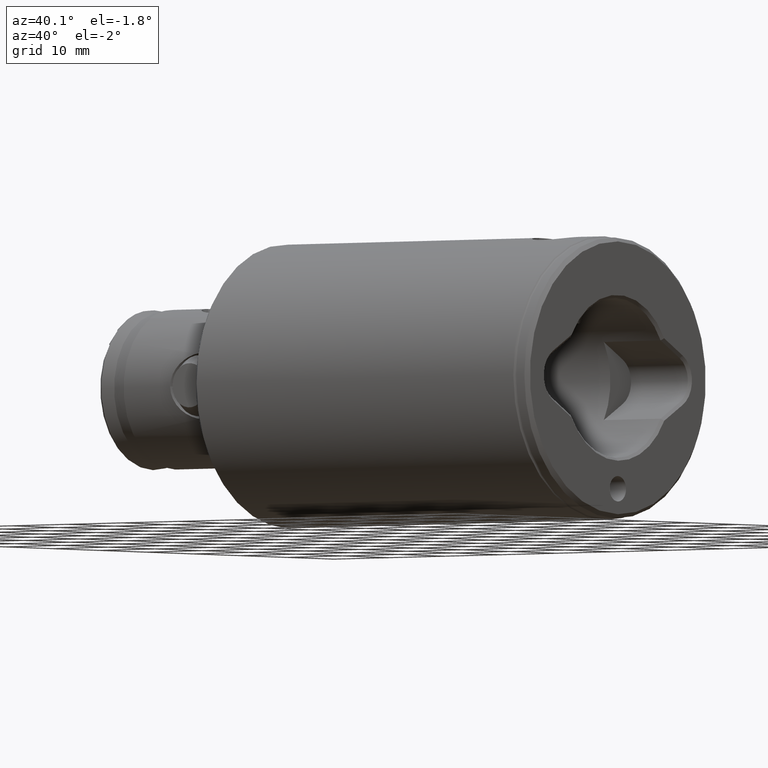
[diagram: clean part render]
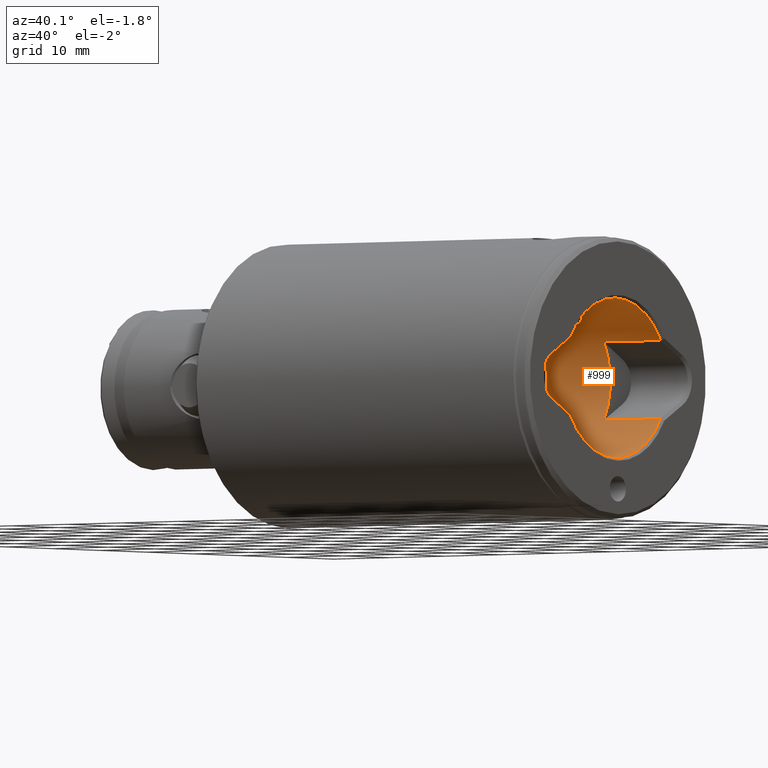
[diagram: same view with one face highlighted and labeled with its STEP entity id]
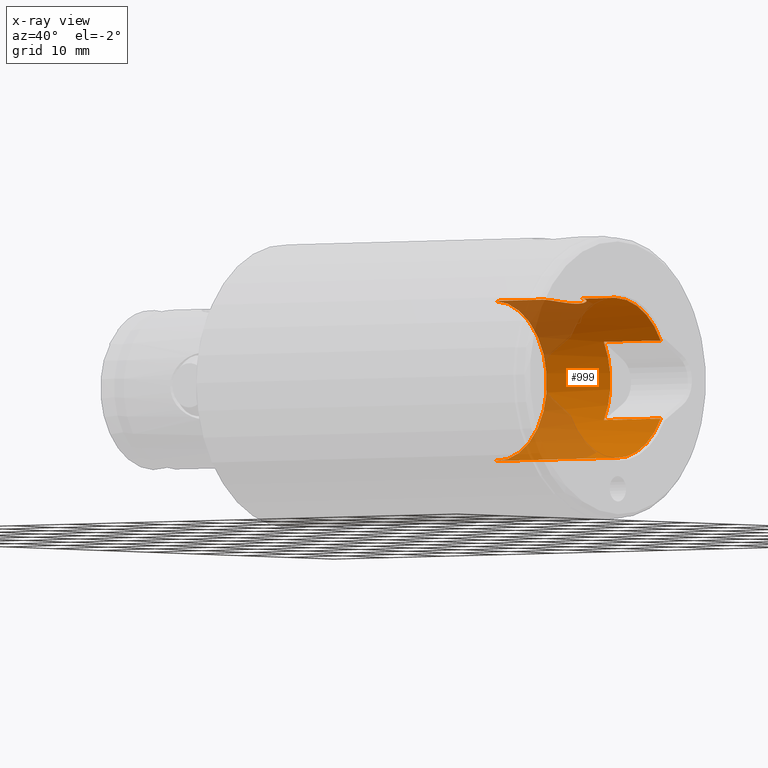
[diagram: x-ray of the same camera — body ghosted, the highlighted face saturated]
A machine part, auxiliary view. The second image highlights one B-rep face of the part: STEP entity #999.
The next image is the same camera in x-ray: the body ghosted, the highlighted face saturated — about 34% of this face is hidden behind the body in this view.
In plain terms, the highlighted cylindrical surface (partial cylindrical patch) has radius 11 mm, axis along (1, 0, -0).
Its self-contained STEP definition (entity closure, byte-faithful):
#49 = ORIENTED_EDGE ( 'NONE', *, *, #3020, .T. ) ;
#53 = EDGE_CURVE ( 'NONE', #2091, #2604, #1787, .T. ) ;
#63 = VECTOR ( 'NONE', #3459, 1000.000000000000000 ) ;
#73 = CARTESIAN_POINT ( 'NONE',  ( 11.00000000000000000, -2.854094968557275700E-016, 6.650000000000004800 ) ) ;
#86 = CARTESIAN_POINT ( 'NONE',  ( 11.00000000000000000, 1.347064945306348700E-015, 13.44999999999999600 ) ) ;
#107 = CARTESIAN_POINT ( 'NONE',  ( 0.0000000000000000000, 0.0000000000000000000, 10.60000000000000100 ) ) ;
#108 = LINE ( 'NONE', #4571, #63 ) ;
#230 = CARTESIAN_POINT ( 'NONE',  ( 10.86828324631419700, 1.707459504374200500, 7.101479267852412600 ) ) ;
#239 = CARTESIAN_POINT ( 'NONE',  ( 10.49653081582790500, 3.290129035966586000, 10.93586877485032500 ) ) ;
#255 = CARTESIAN_POINT ( 'NONE',  ( 11.00000000000000200, 0.2228098618246028000, 13.44999999999999600 ) ) ;
#282 = DIRECTION ( 'NONE',  ( -1.000000000000000000, 0.0000000000000000000, 0.0000000000000000000 ) ) ;
#332 = AXIS2_PLACEMENT_3D ( 'NONE', #533, #3058, #907 ) ;
#457 = EDGE_CURVE ( 'NONE', #1734, #1430, #108, .T. ) ;
#468 = DIRECTION ( 'NONE',  ( 0.0000000000000000000, 0.0000000000000000000, -1.000000000000000000 ) ) ;
#485 = DIRECTION ( 'NONE',  ( -1.000000000000000000, 3.552713678800500900E-015, 0.0000000000000000000 ) ) ;
#533 = CARTESIAN_POINT ( 'NONE',  ( 0.0000000000000000000, 0.0000000000000000000, 22.00000000000000400 ) ) ;
#540 = CARTESIAN_POINT ( 'NONE',  ( 11.00000000000000000, 1.347111479062088200E-015, 29.00000000000000000 ) ) ;
#570 = VECTOR ( 'NONE', #468, 1000.000000000000000 ) ;
#598 = CARTESIAN_POINT ( 'NONE',  ( 10.76873902392065200, 2.249384207509522900, 7.490935159604253700 ) ) ;
#606 = CARTESIAN_POINT ( 'NONE',  ( -5.377444024197280300, 9.595993735232683600, 29.00000000000000000 ) ) ;
#612 = CARTESIAN_POINT ( 'NONE',  ( 10.56805705202883900, 3.053556878964579300, 11.56191914714934700 ) ) ;
#675 = ORIENTED_EDGE ( 'NONE', *, *, #2291, .T. ) ;
#676 = AXIS2_PLACEMENT_3D ( 'NONE', #1832, #4343, #2170 ) ;
#794 = B_SPLINE_CURVE_WITH_KNOTS ( 'NONE', 3,
 ( #3851, #1335, #4222, #2049, #4584, #2391, #230, #2754, #598, #3126, #975, #3489, #1346, #3866, #1713, #4236, #2058, #4599, #2407, #239, #2770, #612, #3143, #986, #3508, #1361, #3882, #1731, #4246, #2068, #4618, #2421, #255, #2784 ),
 .UNSPECIFIED., .F., .F.,
 ( 4, 2, 2, 2, 2, 2, 2, 2, 2, 2, 2, 2, 2, 2, 2, 2, 4 ),
 ( 3.612403663422244400E-019, 0.0006684904861196108100, 0.001336980972239221400, 0.002005471458358831800, 0.002673961944478442400, 0.003342452430598053000, 0.004010942916717662700, 0.004679433402837273300, 0.005347923888956883900, 0.006016414375076494500, 0.006684904861196105100, 0.007353395347315715700, 0.008021885833435325400, 0.008690376319554936000, 0.009358866805674546600, 0.01002735729179415700, 0.01069584777791376800 ),
 .UNSPECIFIED. ) ;
#802 = ORIENTED_EDGE ( 'NONE', *, *, #3256, .T. ) ;
#907 = DIRECTION ( 'NONE',  ( -1.000000000000000000, 0.0000000000000000000, 0.0000000000000000000 ) ) ;
#975 = CARTESIAN_POINT ( 'NONE',  ( 10.66399552641538400, 2.701060602914094200, 7.972945164696653800 ) ) ;
#986 = CARTESIAN_POINT ( 'NONE',  ( 10.66368178976114400, 2.702228586447458900, 12.12525371168649500 ) ) ;
#999 = ADVANCED_FACE ( 'NONE', ( #3429 ), #3150, .F. ) ;
#1060 = DIRECTION ( 'NONE',  ( 0.0000000000000000000, 0.0000000000000000000, -1.000000000000000000 ) ) ;
#1062 = CIRCLE ( 'NONE', #332, 11.00000000000000000 ) ;
#1193 = VECTOR ( 'NONE', #1060, 1000.000000000000000 ) ;
#1201 = EDGE_CURVE ( 'NONE', #3557, #2082, #2868, .T. ) ;
#1202 = CARTESIAN_POINT ( 'NONE',  ( -11.00000000000000000, 0.0000000000000000000, 0.4000000000000010200 ) ) ;
#1207 = ORIENTED_EDGE ( 'NONE', *, *, #1201, .F. ) ;
#1335 = CARTESIAN_POINT ( 'NONE',  ( 10.99999999999999600, 0.2261389005142992500, 6.650000000000006600 ) ) ;
#1346 = CARTESIAN_POINT ( 'NONE',  ( 10.56787055924303700, 3.054173250543622800, 8.539711339873045800 ) ) ;
#1361 = CARTESIAN_POINT ( 'NONE',  ( 10.76935903398357800, 2.246494737872372700, 12.61172335561619900 ) ) ;
#1387 = DIRECTION ( 'NONE',  ( 0.0000000000000000000, 0.0000000000000000000, -1.000000000000000000 ) ) ;
#1390 = CARTESIAN_POINT ( 'NONE',  ( -5.377444024197280300, 9.595993735232683600, 0.4000000000000045200 ) ) ;
#1404 = VERTEX_POINT ( 'NONE', #2788 ) ;
#1430 = VERTEX_POINT ( 'NONE', #3915 ) ;
#1618 = CARTESIAN_POINT ( 'NONE',  ( -11.00000000000000000, 0.0000000000000000000, 22.00000000000000400 ) ) ;
#1658 = ORIENTED_EDGE ( 'NONE', *, *, #3188, .T. ) ;
#1700 = AXIS2_PLACEMENT_3D ( 'NONE', #4639, #1387, #282 ) ;
#1713 = CARTESIAN_POINT ( 'NONE',  ( 10.49652008451753300, 3.290165661884662200, 9.163973697137686600 ) ) ;
#1731 = CARTESIAN_POINT ( 'NONE',  ( 10.86805050544854700, 1.708874936651821400, 12.99765038697486700 ) ) ;
#1734 = VERTEX_POINT ( 'NONE', #73 ) ;
#1768 = ORIENTED_EDGE ( 'NONE', *, *, #2457, .F. ) ;
#1787 = CIRCLE ( 'NONE', #1802, 11.00000000000000000 ) ;
#1802 = AXIS2_PLACEMENT_3D ( 'NONE', #2590, #4059, #2274 ) ;
#1832 = CARTESIAN_POINT ( 'NONE',  ( 0.0000000000000000000, 0.0000000000000000000, 0.4000000000000010200 ) ) ;
#1907 = CARTESIAN_POINT ( 'NONE',  ( -11.00000000000000000, 0.0000000000000000000, 29.00000000000000000 ) ) ;
#1995 = ORIENTED_EDGE ( 'NONE', *, *, #2430, .T. ) ;
#2049 = CARTESIAN_POINT ( 'NONE',  ( 10.96654237970835900, 0.8847359920714118500, 6.759592765928676500 ) ) ;
#2058 = CARTESIAN_POINT ( 'NONE',  ( 10.46139156172362700, 3.399895087260888600, 9.825090414987283100 ) ) ;
#2068 = CARTESIAN_POINT ( 'NONE',  ( 10.94680807550551400, 1.099986132069066000, 13.27478818018603800 ) ) ;
#2082 = VERTEX_POINT ( 'NONE', #86 ) ;
#2091 = VERTEX_POINT ( 'NONE', #1202 ) ;
#2092 = VERTEX_POINT ( 'NONE', #3718 ) ;
#2170 = DIRECTION ( 'NONE',  ( 1.000000000000000000, -1.776356839400250500E-015, 0.0000000000000000000 ) ) ;
#2205 = CIRCLE ( 'NONE', #676, 11.00000000000000000 ) ;
#2274 = DIRECTION ( 'NONE',  ( 1.000000000000000000, 1.776356839400250500E-015, 0.0000000000000000000 ) ) ;
#2291 = EDGE_CURVE ( 'NONE', #2343, #1430, #2205, .T. ) ;
#2343 = VERTEX_POINT ( 'NONE', #2537 ) ;
#2391 = CARTESIAN_POINT ( 'NONE',  ( 10.89746360810248000, 1.512667436881441500, 6.996896965208815500 ) ) ;
#2407 = CARTESIAN_POINT ( 'NONE',  ( 10.46869858331989200, 3.377640924155678600, 10.49861380611167400 ) ) ;
#2421 = CARTESIAN_POINT ( 'NONE',  ( 10.99306186816523800, 0.4483848974953417700, 13.42774622934757300 ) ) ;
#2430 = EDGE_CURVE ( 'NONE', #2540, #2091, #4439, .T. ) ;
#2457 = EDGE_CURVE ( 'NONE', #2092, #1404, #3218, .T. ) ;
#2470 = ORIENTED_EDGE ( 'NONE', *, *, #53, .T. ) ;
#2537 = CARTESIAN_POINT ( 'NONE',  ( 5.377444024197269600, 9.595993735232690700, 0.4000000000000045200 ) ) ;
#2540 = VERTEX_POINT ( 'NONE', #1618 ) ;
#2590 = CARTESIAN_POINT ( 'NONE',  ( 0.0000000000000000000, 0.0000000000000000000, 0.4000000000000010200 ) ) ;
#2604 = VERTEX_POINT ( 'NONE', #1390 ) ;
#2632 = DIRECTION ( 'NONE',  ( -0.0000000000000000000, -0.0000000000000000000, 1.000000000000000000 ) ) ;
#2754 = CARTESIAN_POINT ( 'NONE',  ( 10.80393640319010000, 2.076043563371307200, 7.348290246905396100 ) ) ;
#2770 = CARTESIAN_POINT ( 'NONE',  ( 10.51687589002271200, 3.225424155342586200, 11.14852088679336000 ) ) ;
#2784 = CARTESIAN_POINT ( 'NONE',  ( 11.00000000000000000, 1.347064945306348700E-015, 13.44999999999999600 ) ) ;
#2788 = CARTESIAN_POINT ( 'NONE',  ( -5.377444024197278500, 9.595993735232687200, 10.60000000000000100 ) ) ;
#2817 = VECTOR ( 'NONE', #3198, 1000.000000000000000 ) ;
#2868 = LINE ( 'NONE', #540, #2817 ) ;
#3020 = EDGE_CURVE ( 'NONE', #2604, #1404, #4020, .T. ) ;
#3038 = VECTOR ( 'NONE', #3137, 1000.000000000000000 ) ;
#3053 = ORIENTED_EDGE ( 'NONE', *, *, #3431, .T. ) ;
#3058 = DIRECTION ( 'NONE',  ( -0.0000000000000000000, -0.0000000000000000000, 1.000000000000000000 ) ) ;
#3126 = CARTESIAN_POINT ( 'NONE',  ( 10.69895065264491800, 2.560844472156341500, 7.802642049034186100 ) ) ;
#3137 = DIRECTION ( 'NONE',  ( -0.0000000000000000000, -0.0000000000000000000, 1.000000000000000000 ) ) ;
#3143 = CARTESIAN_POINT ( 'NONE',  ( 10.59840924759385700, 2.947858556175034600, 11.75846341314879800 ) ) ;
#3150 = CYLINDRICAL_SURFACE ( 'NONE', #1700, 11.00000000000000000 ) ;
#3188 = EDGE_CURVE ( 'NONE', #2092, #2343, #4076, .T. ) ;
#3198 = DIRECTION ( 'NONE',  ( 0.0000000000000000000, 0.0000000000000000000, -1.000000000000000000 ) ) ;
#3218 = CIRCLE ( 'NONE', #3957, 11.00000000000000000 ) ;
#3233 = CARTESIAN_POINT ( 'NONE',  ( 5.377444024197269600, 9.595993735232690700, 29.00000000000000000 ) ) ;
#3256 = EDGE_CURVE ( 'NONE', #3557, #2540, #1062, .T. ) ;
#3429 = FACE_OUTER_BOUND ( 'NONE', #4210, .T. ) ;
#3431 = EDGE_CURVE ( 'NONE', #1734, #2082, #794, .T. ) ;
#3459 = DIRECTION ( 'NONE',  ( 0.0000000000000000000, 0.0000000000000000000, -1.000000000000000000 ) ) ;
#3489 = CARTESIAN_POINT ( 'NONE',  ( 10.59795254349112500, 2.949564519370945900, 8.344141179481811200 ) ) ;
#3508 = CARTESIAN_POINT ( 'NONE',  ( 10.69912685970649800, 2.560179105070383700, 12.29825445800932300 ) ) ;
#3557 = VERTEX_POINT ( 'NONE', #3610 ) ;
#3610 = CARTESIAN_POINT ( 'NONE',  ( 11.00000000000000000, 1.347111479062088200E-015, 22.00000000000000400 ) ) ;
#3681 = ORIENTED_EDGE ( 'NONE', *, *, #457, .F. ) ;
#3718 = CARTESIAN_POINT ( 'NONE',  ( 5.377444024197271400, 9.595993735232690700, 10.60000000000000100 ) ) ;
#3851 = CARTESIAN_POINT ( 'NONE',  ( 11.00000000000000000, -2.854094968557275700E-016, 6.650000000000004800 ) ) ;
#3866 = CARTESIAN_POINT ( 'NONE',  ( 10.51726155136212900, 3.224138933342021800, 8.948240398384275100 ) ) ;
#3882 = CARTESIAN_POINT ( 'NONE',  ( 10.80388136555522900, 2.076276180354057900, 12.75147618457839000 ) ) ;
#3915 = CARTESIAN_POINT ( 'NONE',  ( 11.00000000000000000, 1.347111479062088200E-015, 0.4000000000000010200 ) ) ;
#3957 = AXIS2_PLACEMENT_3D ( 'NONE', #107, #2632, #485 ) ;
#4020 = LINE ( 'NONE', #606, #3038 ) ;
#4059 = DIRECTION ( 'NONE',  ( -0.0000000000000000000, -0.0000000000000000000, -1.000000000000000000 ) ) ;
#4076 = LINE ( 'NONE', #3233, #1193 ) ;
#4210 = EDGE_LOOP ( 'NONE', ( #1207, #802, #1995, #2470, #49, #1768, #1658, #675, #3681, #3053 ) ) ;
#4222 = CARTESIAN_POINT ( 'NONE',  ( 10.99303861572498600, 0.4482315637987117100, 6.672334236945573600 ) ) ;
#4236 = CARTESIAN_POINT ( 'NONE',  ( 10.46858256819440500, 3.378002809386202000, 9.603536438454686000 ) ) ;
#4246 = CARTESIAN_POINT ( 'NONE',  ( 10.89785390377608500, 1.509753895391322500, 13.10448383088904100 ) ) ;
#4343 = DIRECTION ( 'NONE',  ( -0.0000000000000000000, -0.0000000000000000000, -1.000000000000000000 ) ) ;
#4439 = LINE ( 'NONE', #1907, #570 ) ;
#4571 = CARTESIAN_POINT ( 'NONE',  ( 11.00000000000000000, 1.347111479062088200E-015, 29.00000000000000000 ) ) ;
#4584 = CARTESIAN_POINT ( 'NONE',  ( 10.94667237184572200, 1.101471673711610600, 6.825661142549756200 ) ) ;
#4599 = CARTESIAN_POINT ( 'NONE',  ( 10.46132360942415400, 3.400104167667191500, 10.27172635121589800 ) ) ;
#4618 = CARTESIAN_POINT ( 'NONE',  ( 10.96632135680550000, 0.8878367827940852900, 13.33967543281878700 ) ) ;
#4639 = CARTESIAN_POINT ( 'NONE',  ( 0.0000000000000000000, 0.0000000000000000000, 29.00000000000000000 ) ) ;